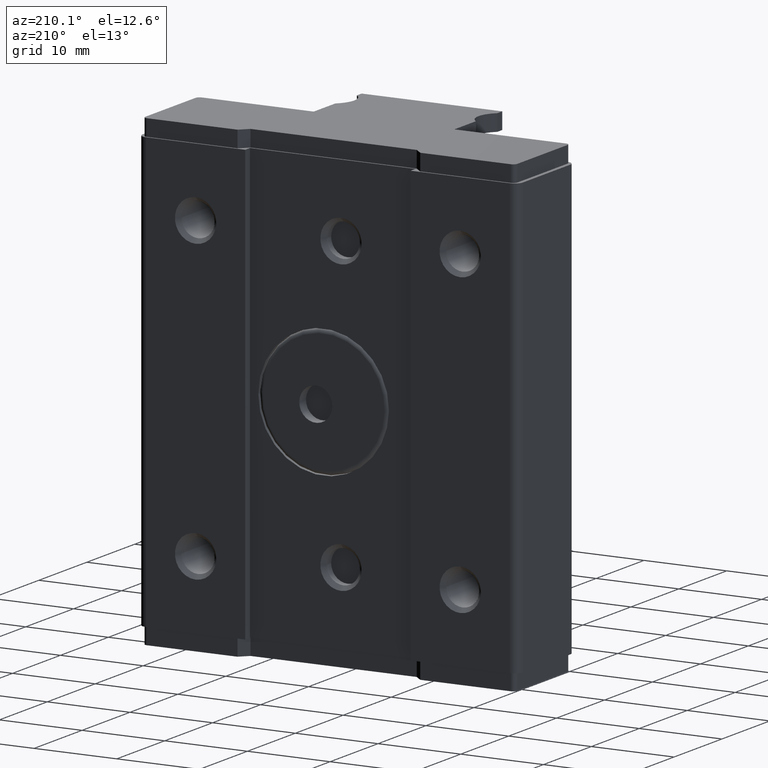
[diagram: clean part render]
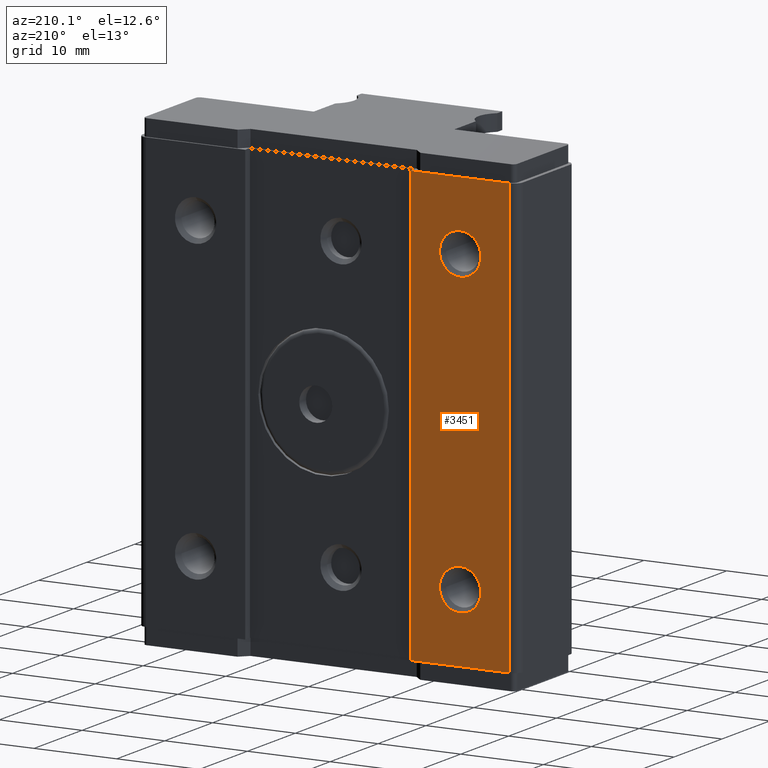
[diagram: same view with one face highlighted and labeled with its STEP entity id]
A machine part, auxiliary view. The second image highlights one B-rep face of the part: STEP entity #3451.
In plain terms, the highlighted planar face has unit normal (0, -1, 0).
Its self-contained STEP definition (entity closure, byte-faithful):
#196 = FACE_BOUND ( 'NONE', #1067, .T. ) ;
#214 = ORIENTED_EDGE ( 'NONE', *, *, #2638, .F. ) ;
#290 = VERTEX_POINT ( 'NONE', #3946 ) ;
#303 = CARTESIAN_POINT ( 'NONE',  ( -10.00000000000000000, 5.949999999999998401, 52.50000000000000000 ) ) ;
#313 = CARTESIAN_POINT ( 'NONE',  ( -15.99999999999999645, 5.949999999999998401, 46.75000000000000000 ) ) ;
#359 = CARTESIAN_POINT ( 'NONE',  ( -10.00000000000000000, 5.949999999999998401, 52.50000000000000000 ) ) ;
#379 = DIRECTION ( 'NONE',  ( -0.000000000000000000, -0.000000000000000000, -1.000000000000000000 ) ) ;
#422 = DIRECTION ( 'NONE',  ( 0.000000000000000000, 0.000000000000000000, -1.000000000000000000 ) ) ;
#597 = ORIENTED_EDGE ( 'NONE', *, *, #2711, .T. ) ;
#659 = CARTESIAN_POINT ( 'NONE',  ( -22.00000000000000000, 5.949999999999998401, 52.50000000000000000 ) ) ;
#722 = EDGE_LOOP ( 'NONE', ( #2917, #597 ) ) ;
#742 = AXIS2_PLACEMENT_3D ( 'NONE', #1414, #1021, #2400 ) ;
#746 = CARTESIAN_POINT ( 'NONE',  ( -16.00000000000000000, 5.949999999999998401, 8.249999999999998224 ) ) ;
#1021 = DIRECTION ( 'NONE',  ( 0.000000000000000000, -1.000000000000000000, 0.000000000000000000 ) ) ;
#1067 = EDGE_LOOP ( 'NONE', ( #4257, #2008 ) ) ;
#1161 = LINE ( 'NONE', #1213, #3175 ) ;
#1213 = CARTESIAN_POINT ( 'NONE',  ( -23.00000000000000000, 5.949999999999998401, 0.000000000000000000 ) ) ;
#1251 = VERTEX_POINT ( 'NONE', #2419 ) ;
#1264 = CIRCLE ( 'NONE', #2413, 2.500000000000002220 ) ;
#1322 = DIRECTION ( 'NONE',  ( 0.000000000000000000, -1.000000000000000000, 0.000000000000000000 ) ) ;
#1357 = DIRECTION ( 'NONE',  ( 0.000000000000000000, 0.000000000000000000, -1.000000000000000000 ) ) ;
#1414 = CARTESIAN_POINT ( 'NONE',  ( -15.99999999999999645, 5.949999999999998401, 44.25000000000000000 ) ) ;
#1421 = LINE ( 'NONE', #2096, #3170 ) ;
#1622 = FACE_BOUND ( 'NONE', #722, .T. ) ;
#1662 = LINE ( 'NONE', #3136, #1725 ) ;
#1688 = PLANE ( 'NONE',  #3504 ) ;
#1725 = VECTOR ( 'NONE', #4610, 1000.000000000000000 ) ;
#1775 = ORIENTED_EDGE ( 'NONE', *, *, #3566, .T. ) ;
#1905 = CARTESIAN_POINT ( 'NONE',  ( -22.00000000000000000, 5.949999999999998401, 0.000000000000000000 ) ) ;
#1956 = FACE_OUTER_BOUND ( 'NONE', #2078, .T. ) ;
#2008 = ORIENTED_EDGE ( 'NONE', *, *, #3940, .T. ) ;
#2078 = EDGE_LOOP ( 'NONE', ( #1775, #3615, #214, #2825 ) ) ;
#2096 = CARTESIAN_POINT ( 'NONE',  ( -22.00000000000000000, 5.949999999999998401, 52.50000000000000000 ) ) ;
#2178 = VECTOR ( 'NONE', #379, 1000.000000000000000 ) ;
#2214 = CIRCLE ( 'NONE', #742, 2.500000000000002220 ) ;
#2259 = CIRCLE ( 'NONE', #3965, 2.499999999999998668 ) ;
#2316 = EDGE_CURVE ( 'NONE', #3249, #4065, #1421, .T. ) ;
#2335 = AXIS2_PLACEMENT_3D ( 'NONE', #746, #3724, #4110 ) ;
#2400 = DIRECTION ( 'NONE',  ( 0.000000000000000000, 0.000000000000000000, -1.000000000000000000 ) ) ;
#2413 = AXIS2_PLACEMENT_3D ( 'NONE', #2848, #4333, #422 ) ;
#2419 = CARTESIAN_POINT ( 'NONE',  ( -15.99999999999999645, 5.949999999999998401, 41.74999999999999289 ) ) ;
#2540 = DIRECTION ( 'NONE',  ( 0.000000000000000000, -1.000000000000000000, 0.000000000000000000 ) ) ;
#2546 = CARTESIAN_POINT ( 'NONE',  ( -16.00000000000000000, 5.949999999999998401, 10.75000000000000000 ) ) ;
#2567 = CIRCLE ( 'NONE', #2335, 2.499999999999998668 ) ;
#2628 = DIRECTION ( 'NONE',  ( -1.000000000000000000, -0.000000000000000000, -0.000000000000000000 ) ) ;
#2638 = EDGE_CURVE ( 'NONE', #3140, #4065, #1662, .T. ) ;
#2711 = EDGE_CURVE ( 'NONE', #1251, #2927, #2214, .T. ) ;
#2742 = EDGE_CURVE ( 'NONE', #3140, #290, #4373, .T. ) ;
#2790 = VERTEX_POINT ( 'NONE', #2546 ) ;
#2793 = DIRECTION ( 'NONE',  ( 0.000000000000000000, -0.000000000000000000, -1.000000000000000000 ) ) ;
#2825 = ORIENTED_EDGE ( 'NONE', *, *, #2742, .T. ) ;
#2848 = CARTESIAN_POINT ( 'NONE',  ( -15.99999999999999645, 5.949999999999998401, 44.25000000000000000 ) ) ;
#2891 = DIRECTION ( 'NONE',  ( -0.000000000000000000, -0.000000000000000000, 1.000000000000000000 ) ) ;
#2917 = ORIENTED_EDGE ( 'NONE', *, *, #3193, .T. ) ;
#2927 = VERTEX_POINT ( 'NONE', #313 ) ;
#2997 = VERTEX_POINT ( 'NONE', #3086 ) ;
#3086 = CARTESIAN_POINT ( 'NONE',  ( -16.00000000000000000, 5.949999999999998401, 5.749999999999998224 ) ) ;
#3088 = EDGE_CURVE ( 'NONE', #2790, #2997, #2259, .T. ) ;
#3136 = CARTESIAN_POINT ( 'NONE',  ( -23.00000000000000000, 5.949999999999998401, 52.50000000000000000 ) ) ;
#3140 = VERTEX_POINT ( 'NONE', #303 ) ;
#3170 = VECTOR ( 'NONE', #2891, 1000.000000000000000 ) ;
#3175 = VECTOR ( 'NONE', #2628, 1000.000000000000000 ) ;
#3193 = EDGE_CURVE ( 'NONE', #2927, #1251, #1264, .T. ) ;
#3249 = VERTEX_POINT ( 'NONE', #1905 ) ;
#3451 = ADVANCED_FACE ( 'NONE', ( #196, #1622, #1956 ), #1688, .F. ) ;
#3504 = AXIS2_PLACEMENT_3D ( 'NONE', #4634, #1322, #2793 ) ;
#3566 = EDGE_CURVE ( 'NONE', #290, #3249, #1161, .T. ) ;
#3615 = ORIENTED_EDGE ( 'NONE', *, *, #2316, .T. ) ;
#3724 = DIRECTION ( 'NONE',  ( 0.000000000000000000, -1.000000000000000000, 0.000000000000000000 ) ) ;
#3940 = EDGE_CURVE ( 'NONE', #2997, #2790, #2567, .T. ) ;
#3946 = CARTESIAN_POINT ( 'NONE',  ( -10.00000000000000000, 5.949999999999998401, 0.000000000000000000 ) ) ;
#3965 = AXIS2_PLACEMENT_3D ( 'NONE', #4769, #2540, #1357 ) ;
#4065 = VERTEX_POINT ( 'NONE', #659 ) ;
#4110 = DIRECTION ( 'NONE',  ( 0.000000000000000000, 0.000000000000000000, -1.000000000000000000 ) ) ;
#4257 = ORIENTED_EDGE ( 'NONE', *, *, #3088, .T. ) ;
#4333 = DIRECTION ( 'NONE',  ( 0.000000000000000000, -1.000000000000000000, 0.000000000000000000 ) ) ;
#4373 = LINE ( 'NONE', #359, #2178 ) ;
#4610 = DIRECTION ( 'NONE',  ( -1.000000000000000000, -0.000000000000000000, -0.000000000000000000 ) ) ;
#4634 = CARTESIAN_POINT ( 'NONE',  ( -23.00000000000000000, 5.949999999999998401, 52.50000000000000000 ) ) ;
#4769 = CARTESIAN_POINT ( 'NONE',  ( -16.00000000000000000, 5.949999999999998401, 8.249999999999998224 ) ) ;